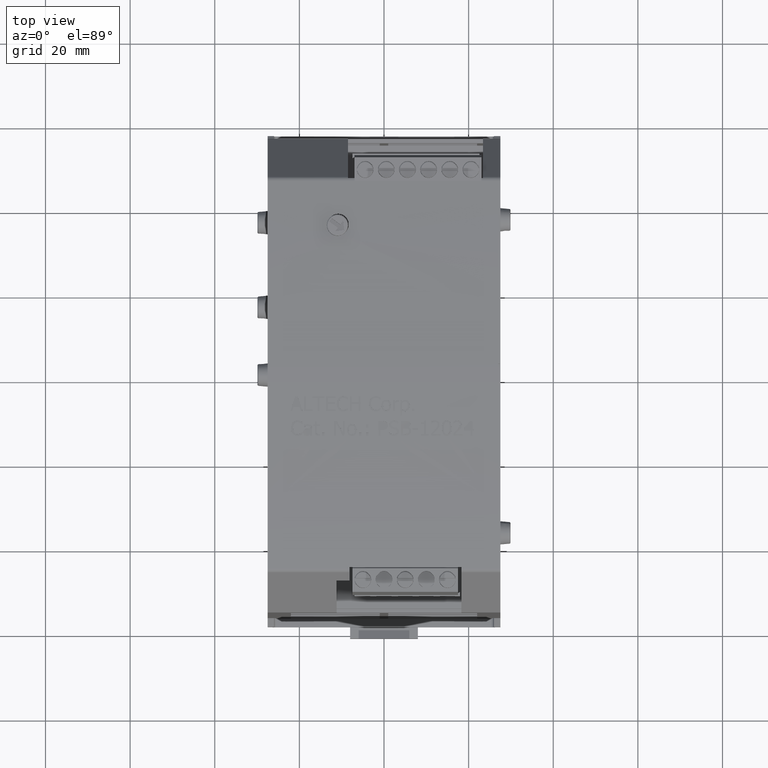
[diagram: clean part render]
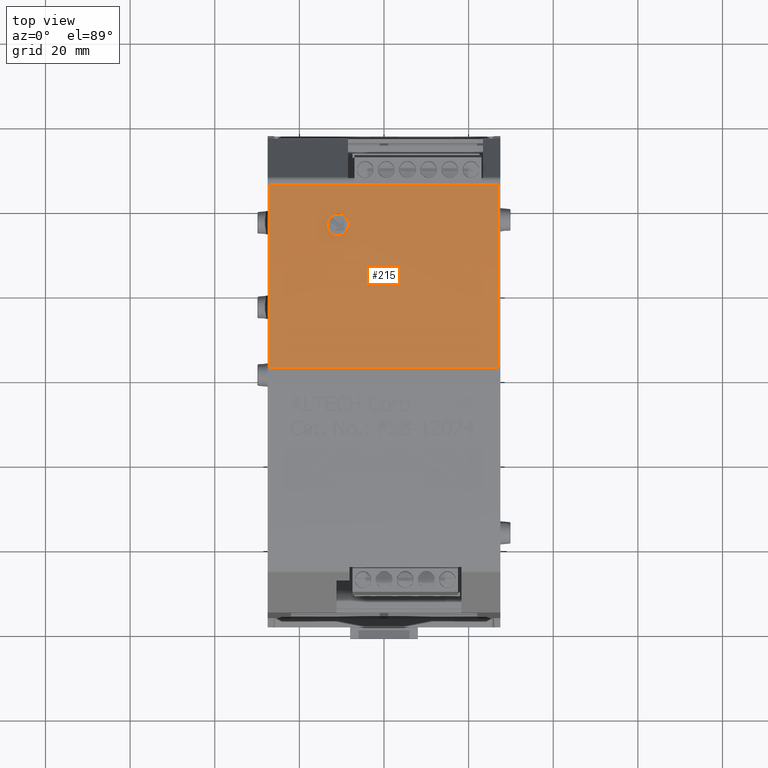
[diagram: same view with one face highlighted and labeled with its STEP entity id]
A machine part, top view. The second image highlights one B-rep face of the part: STEP entity #215.
In plain terms, the highlighted cylindrical surface (partial cylindrical patch) has radius 541.707 mm, axis along (-1, 0, 0).
Its self-contained STEP definition (entity closure, byte-faithful):
#79=CARTESIAN_POINT('',(-0.354899518684806,1.329091619502298,4.021674133642486));
#80=VERTEX_POINT('',#79);
#89=CARTESIAN_POINT('',(-0.505035346349696,1.456043988200308,4.013767749408684));
#90=VERTEX_POINT('',#89);
#91=CARTESIAN_POINT('',(-0.505035344155623,1.456043986153132,4.013767749408682));
#92=CARTESIAN_POINT('',(-0.50234538151815,1.459559991343379,4.013538250683244));
#93=CARTESIAN_POINT('',(-0.499452663990595,1.462846027011876,4.013322885855486));
#94=CARTESIAN_POINT('',(-0.487700351393164,1.474588694740403,4.012550970079239));
#95=CARTESIAN_POINT('',(-0.476639870231869,1.482156308694393,4.012047835998699));
#96=CARTESIAN_POINT('',(-0.452400410713751,1.492193651207477,4.01137792543974));
#97=CARTESIAN_POINT('',(-0.439221345729221,1.494663212603822,4.011211778966517));
#98=CARTESIAN_POINT('',(-0.414506574542203,1.494663212603822,4.011211778966517));
#99=CARTESIAN_POINT('',(-0.401327509557672,1.492193651207477,4.01137792543974));
#100=CARTESIAN_POINT('',(-0.377088050039554,1.482156308694393,4.012047835998699));
#101=CARTESIAN_POINT('',(-0.366027568878259,1.474588694740403,4.012550970079239));
#102=CARTESIAN_POINT('',(-0.348543573924582,1.45711904852344,4.013699354401446));
#103=CARTESIAN_POINT('',(-0.340961817237154,1.446045041820345,4.014421518436432));
#104=CARTESIAN_POINT('',(-0.330909468332608,1.421785099827509,4.015979696842137));
#105=CARTESIAN_POINT('',(-0.328438763285318,1.408599171688707,4.016815094579241));
#106=CARTESIAN_POINT('',(-0.328438763285318,1.383879631816283,4.018358858800729));
#107=CARTESIAN_POINT('',(-0.330908477295787,1.370694983980946,4.019170339358569));
#108=CARTESIAN_POINT('',(-0.340495804189018,1.347554140293001,4.02057440292949));
#109=CARTESIAN_POINT('',(-0.347148873060235,1.33739840748161,4.021181663736742));
#110=CARTESIAN_POINT('',(-0.354899518635412,1.329091619464508,4.021674133642486));
#111=B_SPLINE_CURVE_WITH_KNOTS('',3,(#91,#92,#93,#94,#95,#96,#97,#98,#99,#100,#101,#102,#103,#104,#105,#106,#107,#108,#109,#110),.UNSPECIFIED.,.F.,.U.,(4,2,2,2,2,2,2,2,2,4),(-0.97500303347819,-0.942435161730756,-0.848271883508219,-0.754108605285681,-0.659945327063143,-0.565782048840605,-0.471406537937245,-0.377031027033884,-0.28267667990691,-0.197022182854986),.UNSPECIFIED.);
#112=EDGE_CURVE('',#90,#80,#111,.T.);
#148=CARTESIAN_POINT('',(-1.730899E-014,0.066929133864541,-17.267984561746918));
#149=DIRECTION('',(-1.0,0.0,0.0));
#150=DIRECTION('',(0.0,-2.938006E-013,1.0));
#151=AXIS2_PLACEMENT_3D('',#148,#149,#150);
#152=CYLINDRICAL_SURFACE('',#151,21.327039679857716);
#153=CARTESIAN_POINT('',(1.06182292687699,0.066929133858276,4.059055118110803));
#154=VERTEX_POINT('',#153);
#155=CARTESIAN_POINT('',(1.06182292687699,1.766602806201115,3.991218878499657));
#156=VERTEX_POINT('',#155);
#157=CARTESIAN_POINT('',(1.06182292687699,0.066929133864541,-17.267984561746918));
#158=DIRECTION('',(-1.0,0.0,0.0));
#159=DIRECTION('',(0.0,-2.938006E-013,1.0));
#160=AXIS2_PLACEMENT_3D('',#157,#158,#159);
#161=CIRCLE('',#160,21.327039679857716);
#162=EDGE_CURVE('',#154,#156,#161,.T.);
#163=ORIENTED_EDGE('',*,*,#162,.T.);
#164=CARTESIAN_POINT('',(-1.068169326593714,1.766602806201115,3.991218878499657));
#165=VERTEX_POINT('',#164);
#166=CARTESIAN_POINT('',(1.06182292687699,1.766602806201115,3.991218878499657));
#167=DIRECTION('',(-1.0,0.0,0.0));
#168=VECTOR('',#167,2.129992253470704);
#169=LINE('',#166,#168);
#170=EDGE_CURVE('',#156,#165,#169,.T.);
#171=ORIENTED_EDGE('',*,*,#170,.T.);
#172=CARTESIAN_POINT('',(-1.068169326593714,0.066929133858276,4.059055118110803));
#173=VERTEX_POINT('',#172);
#174=CARTESIAN_POINT('',(-1.068169326593714,0.066929133864541,-17.267984561746918));
#175=DIRECTION('',(1.0,0.0,0.0));
#176=DIRECTION('',(0.0,-2.938006E-013,1.0));
#177=AXIS2_PLACEMENT_3D('',#174,#175,#176);
#178=CIRCLE('',#177,21.327039679857716);
#179=EDGE_CURVE('',#165,#173,#178,.T.);
#180=ORIENTED_EDGE('',*,*,#179,.T.);
#181=CARTESIAN_POINT('',(-1.068169326593714,0.066929133858276,4.059055118110803));
#182=DIRECTION('',(1.0,0.0,0.0));
#183=VECTOR('',#182,2.129992253470704);
#184=LINE('',#181,#183);
#185=EDGE_CURVE('',#173,#154,#184,.T.);
#186=ORIENTED_EDGE('',*,*,#185,.T.);
#187=EDGE_LOOP('',(#163,#171,#180,#186));
#188=FACE_OUTER_BOUND('',#187,.T.);
#189=CARTESIAN_POINT('',(-0.50503534855245,1.45604399023818,4.013767749142041));
#190=CARTESIAN_POINT('',(-0.512784975134868,1.447738284185797,4.014309883995483));
#191=CARTESIAN_POINT('',(-0.519437220322799,1.437584393394466,4.014967474481936));
#192=CARTESIAN_POINT('',(-0.529025364635709,1.414444663067338,4.016445689967815));
#193=CARTESIAN_POINT('',(-0.531496062992061,1.401258772047872,4.017276519806111));
#194=CARTESIAN_POINT('',(-0.531496062992061,1.376539260104615,4.018811724732085));
#195=CARTESIAN_POINT('',(-0.529026350148835,1.363354642246618,4.019618639867163));
#196=CARTESIAN_POINT('',(-0.518975737584065,1.339095503335993,4.021082160318175));
#197=CARTESIAN_POINT('',(-0.511394674163008,1.328021086909613,4.021739375642543));
#198=CARTESIAN_POINT('',(-0.493910329576222,1.310548968246506,4.02276713098242));
#199=CARTESIAN_POINT('',(-0.482848513781893,1.30298020345131,4.023206681013384));
#200=CARTESIAN_POINT('',(-0.458607360495203,1.292941881382881,4.023787077206449));
#201=CARTESIAN_POINT('',(-0.445427989248042,1.290472440944881,4.02392853411942));
#202=CARTESIAN_POINT('',(-0.420707977586448,1.290472440944881,4.02392853411942));
#203=CARTESIAN_POINT('',(-0.40752285306874,1.292944167543899,4.023786946584091));
#204=CARTESIAN_POINT('',(-0.383272917089747,1.302991097347112,4.02320604958853));
#205=CARTESIAN_POINT('',(-0.372208071903786,1.310566183768087,4.022766128325696));
#206=CARTESIAN_POINT('',(-0.360464095472632,1.322310160199241,4.022075303698725));
#207=CARTESIAN_POINT('',(-0.357581113065866,1.325586556868783,4.021881932113169));
#208=CARTESIAN_POINT('',(-0.354899518734328,1.32909161953992,4.021674133638014));
#209=B_SPLINE_CURVE_WITH_KNOTS('',3,(#189,#190,#191,#192,#193,#194,#195,#196,#197,#198,#199,#200,#201,#202,#203,#204,#205,#206,#207,#208),.UNSPECIFIED.,.F.,.U.,(4,2,2,2,2,2,2,2,2,4),(0.197041395247677,0.282700074513887,0.377073393042415,0.471425666099507,0.5657779391566,0.659939217227178,0.754100495297755,0.848305706088524,0.942510916879293,0.97497183715554),.UNSPECIFIED.);
#210=EDGE_CURVE('',#90,#80,#209,.T.);
#211=ORIENTED_EDGE('',*,*,#210,.F.);
#212=ORIENTED_EDGE('',*,*,#112,.T.);
#213=EDGE_LOOP('',(#211,#212));
#214=FACE_BOUND('',#213,.T.);
#215=ADVANCED_FACE('',(#188,#214),#152,.T.);